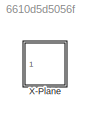
MODEL slx_6610d5d5056f
KIND library
CONFIG AbsTol = auto
CONFIG EnableMultiTasking = off
CONFIG FixedStep = auto
CONFIG MaxStep = auto
CONFIG MinStep = auto
CONFIG RelTol = 1e-3
CONFIG SampleTimeConstraint = Unconstrained
CONFIG Solver = VariableStepAuto
CONFIG SolverName = VariableStepAuto
CONFIG StartTime = 0.0
CONFIG StopTime = 10.0
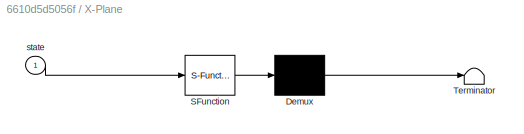
BLOCK [SubSystem] X-Plane
  ErrorFcn = Stateflow.Translate.translate
  PermitHierarchicalResolution = ExplicitOnly
  Ports = [1]
  RequestExecContextInheritance = off
  SFBlockType = MATLAB Function
  StartFcn = pauseSimulation
  StopFcn = closeSocket
  TreatAsAtomicUnit = on
BLOCK [Demux] X-Plane/ Demux 
  Outputs = 1
  Ports = [1, 1]
BLOCK [S-Function] X-Plane/ SFunction 
  EnableBusSupport = on
  FunctionName = sf_sfun
  PortCounts = [1 1]
  Ports = [1, 1]
  SFcnIsStateOwnerBlock = off
  SFunctionDeploymentMode = off
  Tag = Stateflow S-Function XPlaneConnect 2
BLOCK [Terminator] X-Plane/ Terminator 
BLOCK [Inport] X-Plane/state
  IconDisplay = Port number
CHART X-Plane states=1 transitions=1
  STATE_LABEL 'eML_blk_kernel()'
  STATE_LABEL "SCRIPT:\nfunction updatePOSI(state)\n    coder.extrinsic('updateXplanePosition');\n    updateXplanePosition(state);\nend\n"
